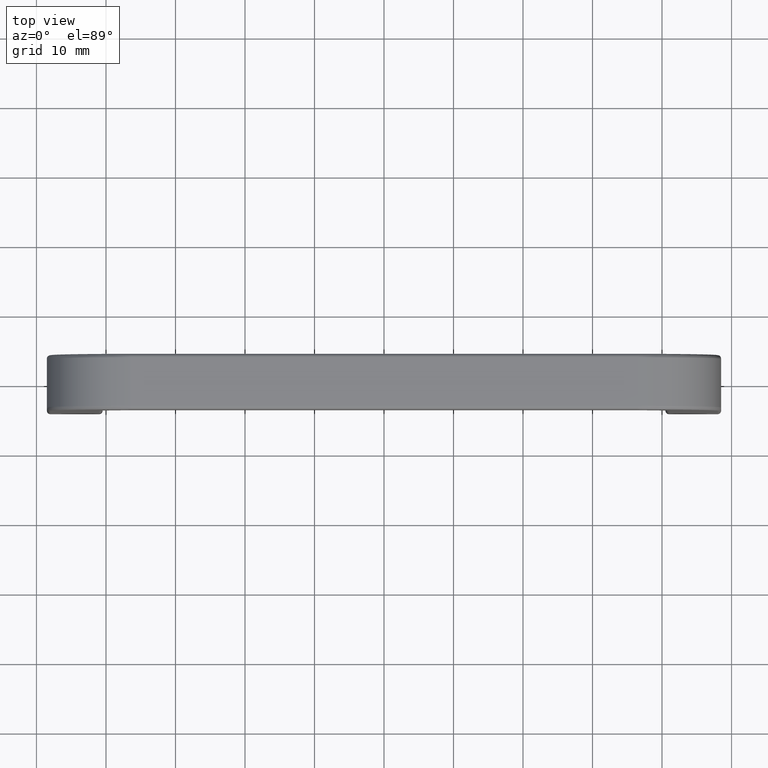
[diagram: clean part render]
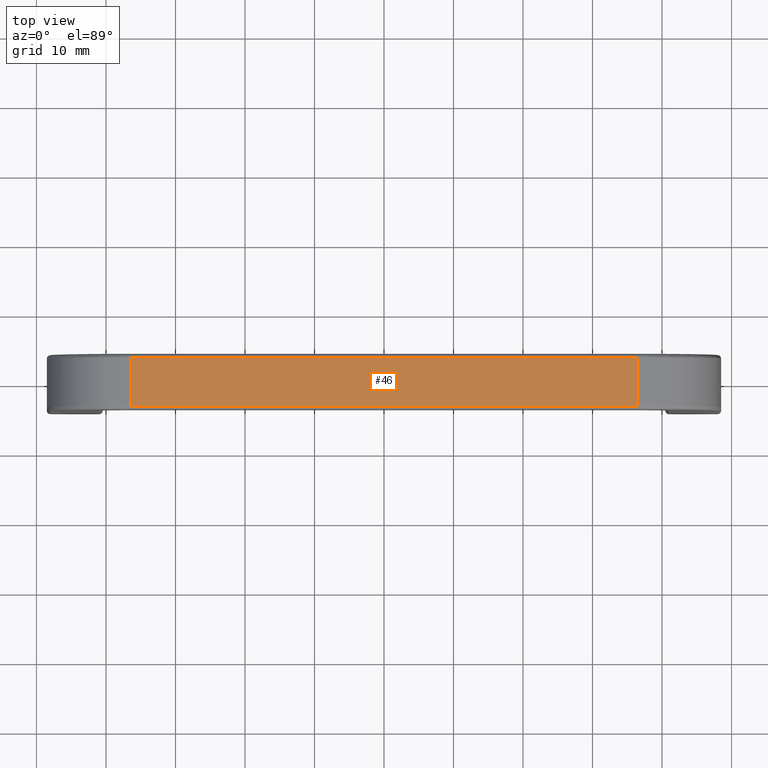
[diagram: same view with one face highlighted and labeled with its STEP entity id]
A machine part, top view. The second image highlights one B-rep face of the part: STEP entity #46.
In plain terms, the highlighted planar face has unit normal (-0, 0, 1).
Its self-contained STEP definition (entity closure, byte-faithful):
#46=ADVANCED_FACE('',(#141),#140,.T.);
#140=PLANE('',#639);
#141=FACE_OUTER_BOUND('',#640,.T.);
#636=CARTESIAN_POINT('',(-4.38000000000E+01,4.20000000000E+00,4.00000000000E+01));
#637=DIRECTION('',(-0.00000000000E+00,0.00000000000E+00,1.00000000000E+00));
#638=DIRECTION('',(0.00000000000E+00,-1.00000000000E+00,0.00000000000E+00));
#639=AXIS2_PLACEMENT_3D('',#636,#637,#638);
#640=EDGE_LOOP('',(#952,#953,#954,#955));
#952=ORIENTED_EDGE('',*,*,#1136,.T.);
#953=ORIENTED_EDGE('',*,*,#1137,.F.);
#954=ORIENTED_EDGE('',*,*,#1138,.F.);
#955=ORIENTED_EDGE('',*,*,#1139,.T.);
#1136=EDGE_CURVE('',#1348,#1279,#1349,.T.);
#1137=EDGE_CURVE('',#1251,#1279,#1355,.T.);
#1138=EDGE_CURVE('',#1293,#1251,#1361,.T.);
#1139=EDGE_CURVE('',#1293,#1348,#1367,.T.);
#1251=VERTEX_POINT('',#1847);
#1279=VERTEX_POINT('',#1867);
#1293=VERTEX_POINT('',#1877);
#1348=VERTEX_POINT('',#1916);
#1349=LINE('',#1917,#1918);
#1355=LINE('',#1920,#1921);
#1361=LINE('',#1923,#1924);
#1367=LINE('',#1926,#1927);
#1847=CARTESIAN_POINT('',(3.65000000000E+01,3.50000000000E+00,4.00000000000E+01));
#1867=CARTESIAN_POINT('',(3.65000000000E+01,-3.50000000000E+00,4.00000000000E+01));
#1877=CARTESIAN_POINT('',(-3.65000000000E+01,3.50000000000E+00,4.00000000000E+01));
#1916=CARTESIAN_POINT('',(-3.65000000000E+01,-3.50000000000E+00,4.00000000000E+01));
#1917=CARTESIAN_POINT('',(-3.65000000000E+01,-3.50000000000E+00,4.00000000000E+01));
#1918=VECTOR('',#1919,7.30000000000E+01);
#1919=DIRECTION('',(1.00000000000E+00,0.00000000000E+00,0.00000000000E+00));
#1920=CARTESIAN_POINT('',(3.65000000000E+01,3.50000000000E+00,4.00000000000E+01));
#1921=VECTOR('',#1922,7.00000000000E+00);
#1922=DIRECTION('',(0.00000000000E+00,-1.00000000000E+00,0.00000000000E+00));
#1923=CARTESIAN_POINT('',(-3.65000000000E+01,3.50000000000E+00,4.00000000000E+01));
#1924=VECTOR('',#1925,7.30000000000E+01);
#1925=DIRECTION('',(1.00000000000E+00,0.00000000000E+00,0.00000000000E+00));
#1926=CARTESIAN_POINT('',(-3.65000000000E+01,3.50000000000E+00,4.00000000000E+01));
#1927=VECTOR('',#1928,7.00000000000E+00);
#1928=DIRECTION('',(0.00000000000E+00,-1.00000000000E+00,0.00000000000E+00));